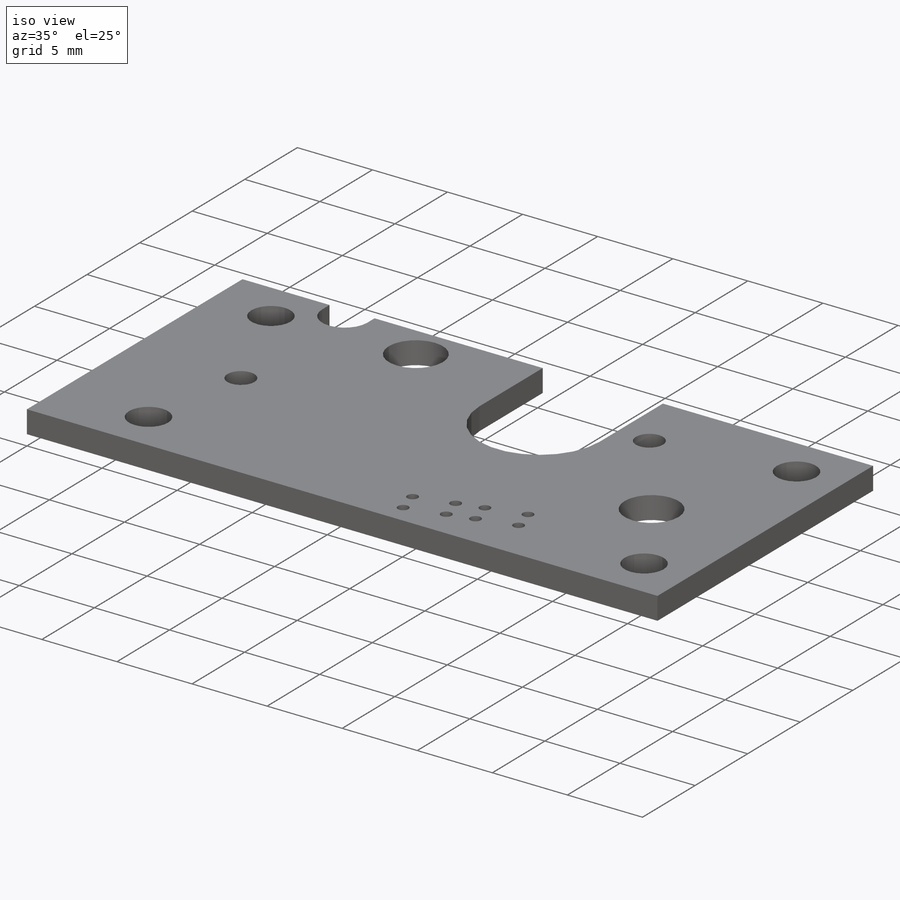
[diagram: iso view]
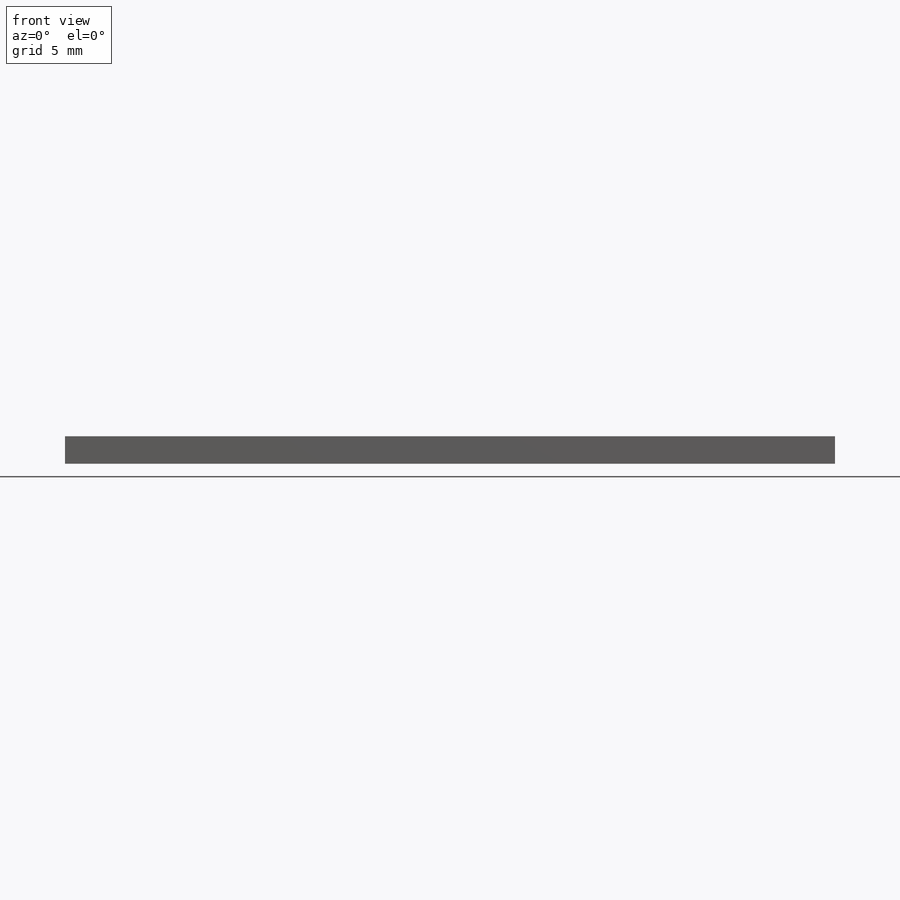
[diagram: front view]
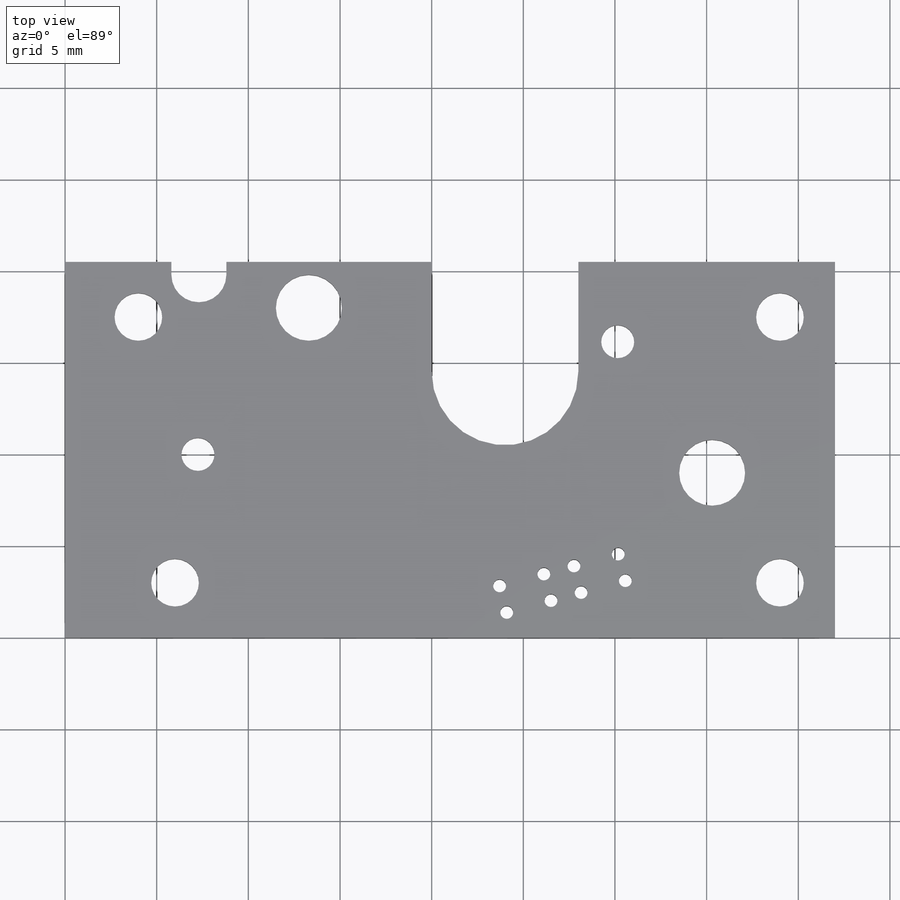
[diagram: top view]
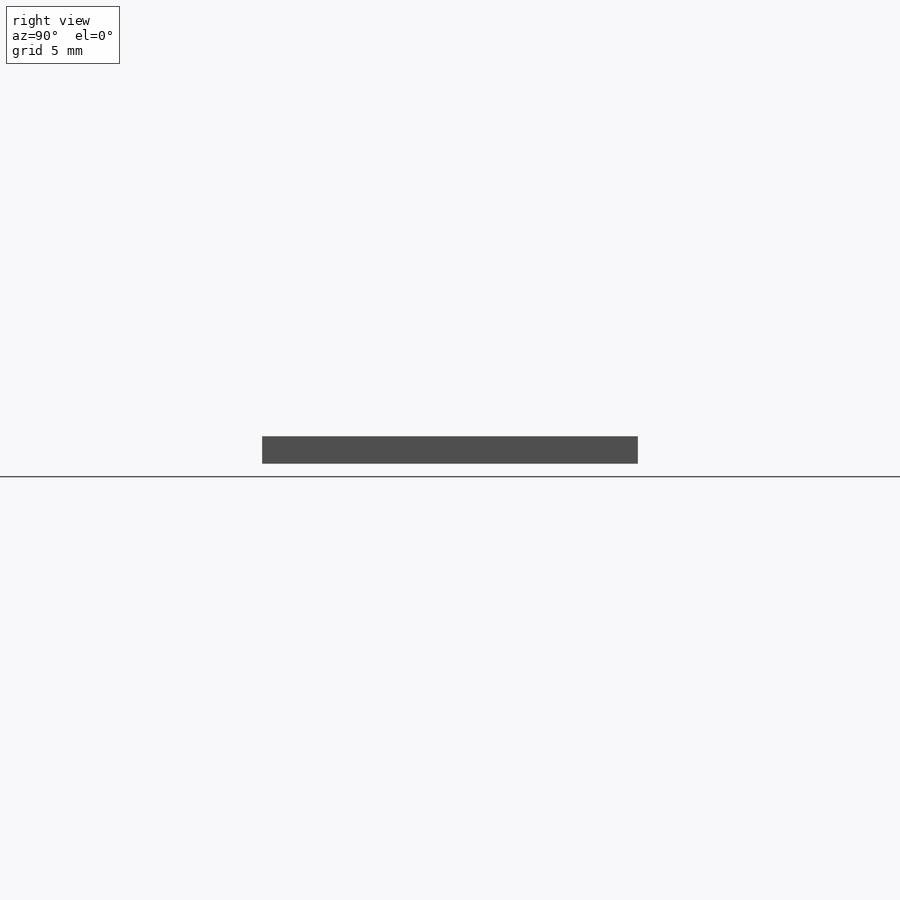
[diagram: right view]
SOLIDWORKS PART (.sldprt)
format: sldprt  version: not decoded by parser v0  size: 282,112 bytes
history: native  units: mm
features: sketch x4, plane x3, cut_extrude x3, material x1, extrude x1 (+13 scaffold rows collapsed)
feature tree (25):
  scaffold x13  (default folders/planes/origin — collapsed)
  material  "Материал <не указан>"
  plane  "Спереди"
  plane  "Сверху"
  plane  "Справа"
  sketch  "Эскиз1"  dims[D1=42.0mm D2=20.5mm]
  extrude  "Бобышка-Вытянуть1"  Depth=1.5mm
  sketch  "Эскиз2"  dims[c1.D2=4.0mm c1.D3=8.0mm c1.D1=8.0mm c2.D2=17.0mm c2.D3=10.0mm c2.D1=6.0mm c3.D2=18.0mm]
  cut_extrude  "Вырез-Вытянуть1"  [1 undecoded]
  sketch  "Эскиз4"  dims[c1.D1=2.0mm c1.D3=2.6mm c1.D4=3.6mm c1.D6=2.8mm c1.D8=2.8mm c1.D9=2.3mm c1.D10=2.3mm c1.D11=3.0mm c1.D12=3.0mm c1.D13=2.3mm c1.D14=2.3mm c1.D15=2.3mm c1.D16=3.0mm c1.D17=3.6mm c1.D18=3.0mm c1.D19=3.6mm c1.D20=3.6mm c1.D21=3.6mm c1.D22=3.0mm c1.D23=3.0mm c2.D14=2.3mm c2.D6=2.8mm c2.D9=~3.117626mm c2.D10=~3.117626mm c2.D11=~3.117626mm c2.D12=~3.117626mm c2.D13=1.8mm c2.D2=3.0mm c2.D5=3.0mm c3.D6=3.0mm c3.D7=3.0mm c3.D8=3.0mm c3.D10=5.0mm c3.D11=6.9mm c3.D12=4.1mm c3.D13=5.0mm c3.D14=5.1mm c3.D15=24.4mm c3.D16=11.3mm c3.D17=22.0mm c3.D18=5.5mm c3.D19=9.0mm c3.D20=6.0mm c3.D21=1.8mm c3.D22=24.7mm c3.D23=5.5mm c4.D14=11.1mm c4.D6=4.0mm c4.D24=6.0mm c4.D9=1.25mm c4.D10=7.0mm c4.D11=22.9mm c4.D12=6.15mm]
  cut_extrude  "Вырез-Вытянуть3"  [1 undecoded]
  sketch  "Эскиз5"  dims[c1.D1=0.7mm c1.D2=0.7mm c1.D3=0.7mm c1.D4=0.7mm c1.D5=0.7mm c2.D2=1.5mm c2.D3=2.5mm c2.D4=2.5mm c2.D5=1.7mm]
  cut_extrude  "Вырез-Вытянуть4"  [1 undecoded]
decode coverage: 5 of 8 modeling features carry decoded parameters
note: ~ marks probable driven/reference dimensions
note: 3 parameter values undecoded
summary: no parameter record found for 3 features
note: suppression state not decoded; provenance and decode notes live in map.json
